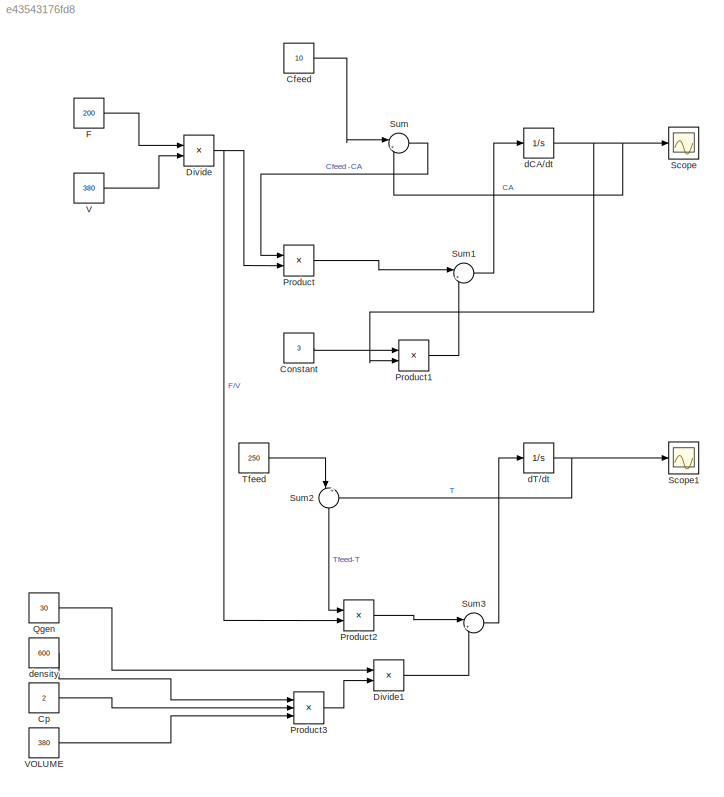
MODEL slx_e43543176fd8
KIND model
CONFIG AbsTol = auto
CONFIG EnableMultiTasking = off
CONFIG FixedStep = auto
CONFIG MaxStep = auto
CONFIG MinStep = auto
CONFIG RelTol = 1e-3
CONFIG SampleTimeConstraint = Unconstrained
CONFIG SolverName = VariableStepAuto
CONFIG StartTime = 0.0
CONFIG StopTime = 10.0
BLOCK [Constant] Cfeed
  Value = 10
BLOCK [Constant] Constant
  Value = 3
BLOCK [Constant] Cp
  Value = 2
BLOCK [Product] Divide
  Inputs = */
BLOCK [Product] Divide1
  Inputs = */
BLOCK [Constant] F
  Value = 200
  VectorParams1D = off
BLOCK [Product] Product
BLOCK [Product] Product1
BLOCK [Product] Product2
BLOCK [Product] Product3
  Inputs = 3
BLOCK [Constant] Qgen
  Value = 30
BLOCK [Scope] Scope
  Floating = off
  NumInputPorts = 1
  ScopeSpecificationString = Simulink.scopes.TimeScopeBlockCfg('CurrentConfiguration', extmgr.ConfigurationSet(extmgr.Configuration('Core','General UI',true),extmgr.Configuration('Core','Source UI',true),extmgr.Configuration('Sources','WiredSimulink',true),extmgr.Configuration('Visuals','Time Domain',true,'SerializedDisplays',{struct('MinYLimReal','-0.18657','MaxYLimReal','1.6791','YLabelReal','','MinYLimMag','0.00000','MaxYL...<+1436ch>
BLOCK [Scope] Scope1
  Floating = off
  NumInputPorts = 1
  ScopeSpecificationString = Simulink.scopes.TimeScopeBlockCfg('CurrentConfiguration', extmgr.ConfigurationSet(extmgr.Configuration('Core','General UI',true),extmgr.Configuration('Core','Source UI',true),extmgr.Configuration('Sources','WiredSimulink',true,'DataLoggingVariableName','ScopeData1'),extmgr.Configuration('Visuals','Time Domain',true,'SerializedDisplays',{struct('MinYLimReal','-31.08817','MaxYLimReal','279.79357','Y...<+1488ch>
BLOCK [Sum] Sum
  Inputs = |+-
BLOCK [Sum] Sum1
  Inputs = |+-
BLOCK [Sum] Sum2
  Inputs = |+-
  NameLocation = left
BLOCK [Sum] Sum3
  Inputs = |++
BLOCK [Constant] Tfeed
  Value = 250
BLOCK [Constant] V
  Value = 380
BLOCK [Constant] VOLUME
  Value = 380
BLOCK [Integrator] dCA//dt
BLOCK [Integrator] dT//dt
BLOCK [Constant] density
  Value = 600
LINE Cfeed:1 -> Sum:1
LINE Constant:1 -> Product1:1
LINE Cp:1 -> Product3:2
LINE Divide1:1 -> Sum3:2
NET Divide:1 -> Product2:2, Product:2
LINE F:1 -> Divide:1
LINE Product1:1 -> Sum1:2
LINE Product2:1 -> Sum3:1
LINE Product3:1 -> Divide1:2
LINE Product:1 -> Sum1:1
LINE Qgen:1 -> Divide1:1
LINE Sum1:1 -> dCA//dt:1
LINE Sum2:1 -> Product2:1
LINE Sum3:1 -> dT//dt:1
LINE Sum:1 -> Product:1
LINE Tfeed:1 -> Sum2:1
LINE V:1 -> Divide:2
LINE VOLUME:1 -> Product3:3
NET dCA//dt:1 -> Product1:2, Scope:1, Sum:2
NET dT//dt:1 -> Scope1:1, Sum2:2
LINE density:1 -> Product3:1
note: NET lines group one-source signal fan-out (src -> all destinations, sorted); 1:1 wires keep LINE
